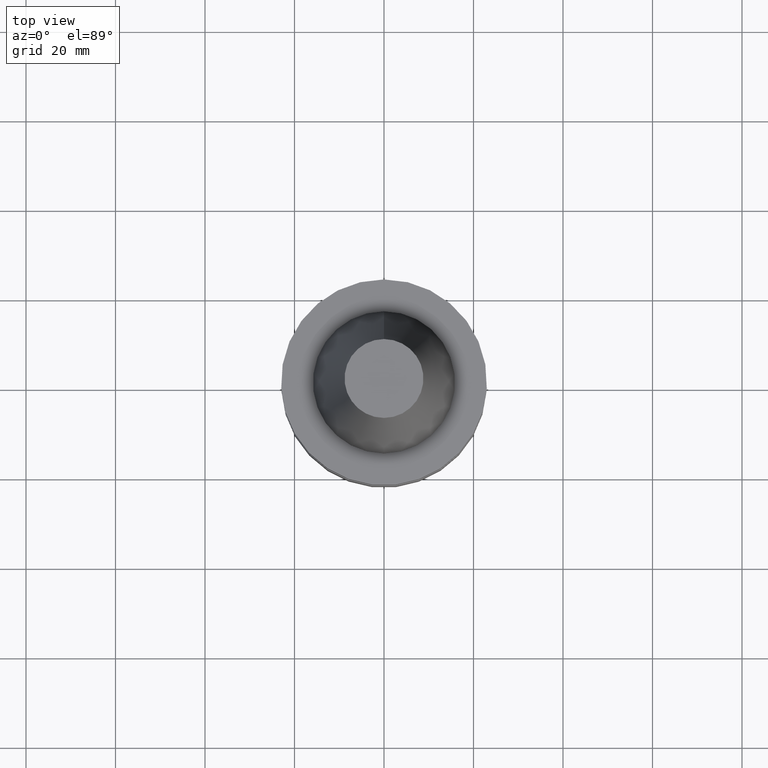
[diagram: clean part render]
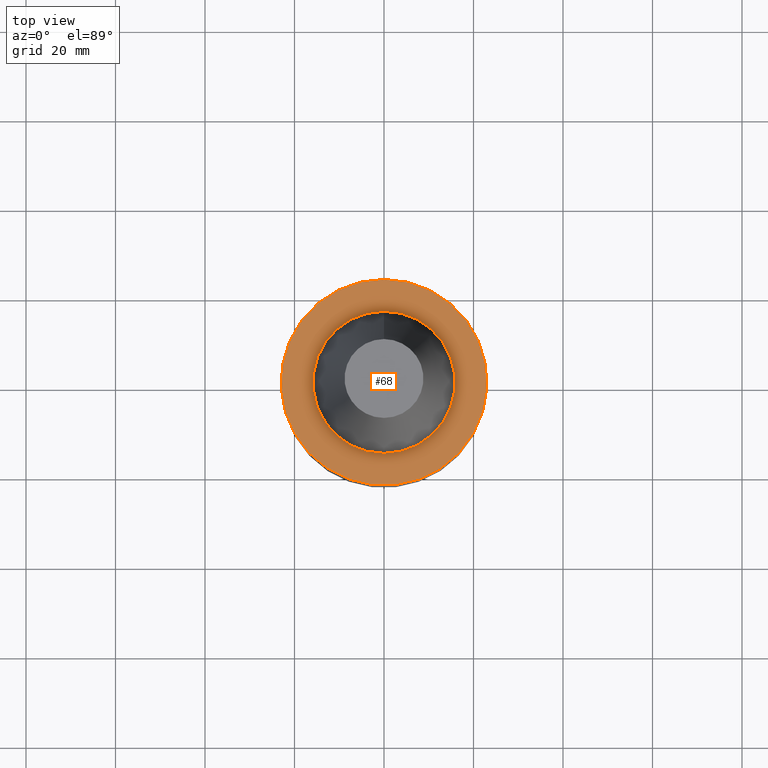
[diagram: same view with one face highlighted and labeled with its STEP entity id]
A machine part, top view. The second image highlights one B-rep face of the part: STEP entity #68.
In plain terms, the highlighted planar face has unit normal (-0, -0, 1).
Its self-contained STEP definition (entity closure, byte-faithful):
#68=ADVANCED_FACE('Unnamed[1]',(#167,#168),#169,.T.);
#73=EDGE_CURVE('Unnamed[1]',#176,#176,#177,.T.);
#122=EDGE_CURVE('Unnamed[1]',#251,#251,#252,.T.);
#167=FACE_OUTER_BOUND('',#298,.T.);
#168=FACE_BOUND('',#299,.T.);
#169=PLANE('',#300);
#176=VERTEX_POINT('',#309);
#177=CIRCLE('',#310,15.875);
#251=VERTEX_POINT('',#402);
#252=CIRCLE('',#403,23.0);
#298=EDGE_LOOP('',(#439));
#299=EDGE_LOOP('',(#440));
#300=AXIS2_PLACEMENT_3D('',#441,#442,#443);
#309=CARTESIAN_POINT('',(6.12323399573675E-017,15.875,-0.999999999999998));
#310=AXIS2_PLACEMENT_3D('',#450,#451,#452);
#402=CARTESIAN_POINT('',(6.12323399573674E-017,23.0,-0.999999999999997));
#403=AXIS2_PLACEMENT_3D('',#533,#534,#535);
#439=ORIENTED_EDGE('',*,*,#122,.F.);
#440=ORIENTED_EDGE('',*,*,#73,.T.);
#441=CARTESIAN_POINT('',(6.12323399573674E-017,19.4375,-0.999999999999998));
#442=DIRECTION('',(-6.12323399573677E-017,-1.22464679914735E-016,1.0));
#443=DIRECTION('',(1.23259516440783E-032,-1.0,-1.22464679914735E-016));
#450=CARTESIAN_POINT('',(6.12323399573677E-017,1.22464679914735E-016,-1.0));
#451=DIRECTION('',(6.12323399573677E-017,1.22464679914735E-016,-1.0));
#452=DIRECTION('',(-1.23259516440783E-032,1.0,1.22464679914735E-016));
#533=CARTESIAN_POINT('',(6.12323399573677E-017,1.22464679914735E-016,-1.0));
#534=DIRECTION('',(6.12323399573677E-017,1.22464679914735E-016,-1.0));
#535=DIRECTION('',(-1.23259516440783E-032,1.0,1.22464679914735E-016));